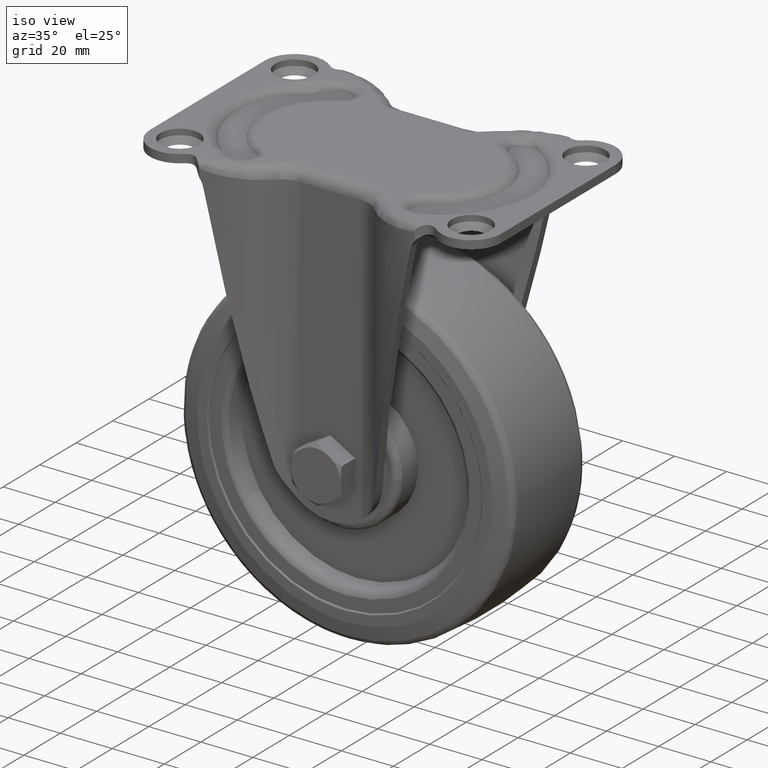
[diagram: clean part render]
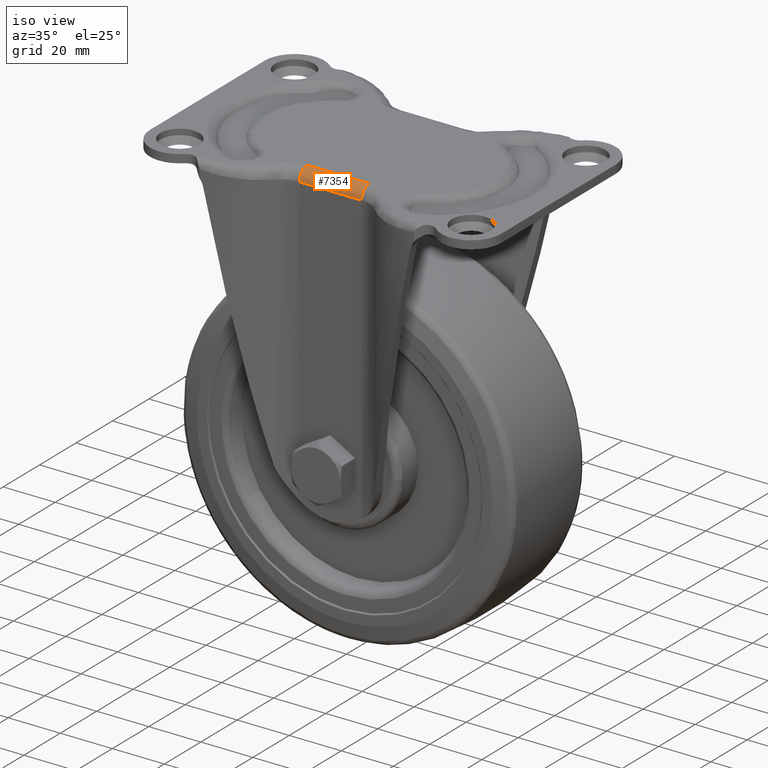
[diagram: same view with one face highlighted and labeled with its STEP entity id]
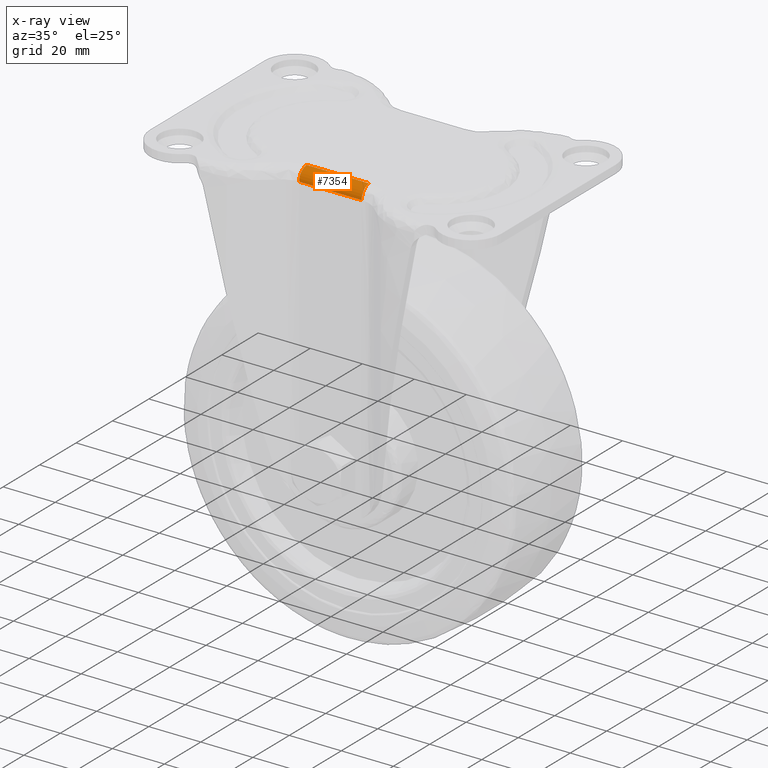
[diagram: x-ray of the same camera — body ghosted, the highlighted face saturated]
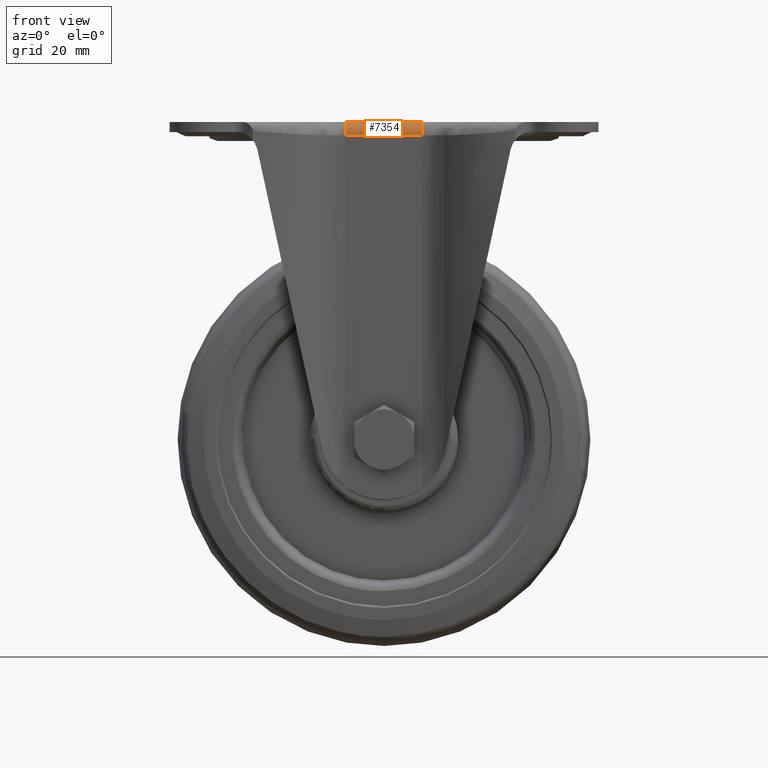
[diagram: same view with one face highlighted and labeled with its STEP entity id]
A machine part, iso view. The second image highlights one B-rep face of the part: STEP entity #7354.
The next image is the same camera in x-ray: the body ghosted, the highlighted face saturated — about 0% of this face is hidden behind the body in this view.
A second angle (front view) of the same face is appended — the face is thin or edge-on in the first view.
In plain terms, the highlighted face is a freeform B-spline surface patch.
Its self-contained STEP definition (entity closure, byte-faithful):
#7264=CARTESIAN_POINT('',(11.998857618558160,-24.650000999952351,0.0));
#7265=VERTEX_POINT('',#7264);
#7279=CARTESIAN_POINT('',(11.998857443558160,-28.850000999952350,-4.200000000000000));
#7280=VERTEX_POINT('',#7279);
#7281=CARTESIAN_POINT('',(11.998857443558160,-28.850000999952339,-4.200000000000000));
#7282=CARTESIAN_POINT('',(11.998857443558157,-28.850000999952346,0.0));
#7283=CARTESIAN_POINT('',(11.998857618558160,-24.650000999952351,0.0));
#7291=(BOUNDED_CURVE()B_SPLINE_CURVE(2,(#7281,#7282,#7283),.UNSPECIFIED.,.F.,.U.)CURVE()GEOMETRIC_REPRESENTATION_ITEM()QUASI_UNIFORM_CURVE()RATIONAL_B_SPLINE_CURVE((1.0,0.707106781186548,1.0))REPRESENTATION_ITEM(''));
#7292=EDGE_CURVE('',#7280,#7265,#7291,.T.);
#7310=CARTESIAN_POINT('',(12.598800444119370,-24.466799598015552,-0.003997469356198));
#7311=CARTESIAN_POINT('',(-12.613796479296949,-24.466798547490679,-0.003997469356198));
#7312=CARTESIAN_POINT('',(12.598800527684389,-29.169452469590791,0.201324230707193));
#7313=CARTESIAN_POINT('',(-12.613796395731949,-29.169453126805212,0.201324877711733));
#7314=CARTESIAN_POINT('',(12.598800631902813,-28.839679097137772,-4.494243859754485));
#7315=CARTESIAN_POINT('',(-12.613796291513497,-28.839680264083785,-4.494243989753493));
#7323=(BOUNDED_SURFACE()B_SPLINE_SURFACE(1,2,((#7310,#7312,#7314),(#7311,#7313,#7315)),.UNSPECIFIED.,.F.,.F.,.U.)B_SPLINE_SURFACE_WITH_KNOTS((2,2),(3,3),(0.0,25.212596923416339),(0.0,7.525318715401649),.UNSPECIFIED.)GEOMETRIC_REPRESENTATION_ITEM()RATIONAL_B_SPLINE_SURFACE(((1.0,0.664513898535122,0.996233561259061),(1.0,0.664513898535122,0.996233561259061)))REPRESENTATION_ITEM('')SURFACE());
#7324=ORIENTED_EDGE('',*,*,#7292,.T.);
#7325=CARTESIAN_POINT('',(-11.998855098554341,-24.650000000047651,0.0));
#7326=VERTEX_POINT('',#7325);
#7327=CARTESIAN_POINT('',(-11.998855098554341,-24.650000000047651,0.0));
#7328=CARTESIAN_POINT('',(11.998857618558160,-24.650000999952351,0.0));
#7329=QUASI_UNIFORM_CURVE('',1,(#7327,#7328),.UNSPECIFIED.,.F.,.U.);
#7330=EDGE_CURVE('',#7326,#7265,#7329,.T.);
#7331=ORIENTED_EDGE('',*,*,#7330,.F.);
#7332=CARTESIAN_POINT('',(-11.998855098554341,-28.850000000047650,-4.200000000000000));
#7333=VERTEX_POINT('',#7332);
#7334=CARTESIAN_POINT('',(-11.998855098554341,-28.850000000047640,-4.200000000000006));
#7335=CARTESIAN_POINT('',(-11.998855273554341,-28.850000000047650,-1.040834E-014));
#7336=CARTESIAN_POINT('',(-11.998855098554341,-24.650000000047651,-3.469447E-015));
#7344=(BOUNDED_CURVE()B_SPLINE_CURVE(2,(#7334,#7335,#7336),.UNSPECIFIED.,.F.,.U.)CURVE()GEOMETRIC_REPRESENTATION_ITEM()QUASI_UNIFORM_CURVE()RATIONAL_B_SPLINE_CURVE((1.0,0.707106781186548,1.0))REPRESENTATION_ITEM(''));
#7345=EDGE_CURVE('',#7333,#7326,#7344,.T.);
#7346=ORIENTED_EDGE('',*,*,#7345,.F.);
#7347=CARTESIAN_POINT('',(11.998857443558160,-28.850000999952350,-4.200000000000000));
#7348=CARTESIAN_POINT('',(-11.998855098554341,-28.850000000047650,-4.200000000000000));
#7349=QUASI_UNIFORM_CURVE('',1,(#7347,#7348),.UNSPECIFIED.,.F.,.U.);
#7350=EDGE_CURVE('',#7280,#7333,#7349,.T.);
#7351=ORIENTED_EDGE('',*,*,#7350,.F.);
#7352=EDGE_LOOP('',(#7324,#7331,#7346,#7351));
#7353=FACE_OUTER_BOUND('',#7352,.T.);
#7354=ADVANCED_FACE('',(#7353),#7323,.T.);